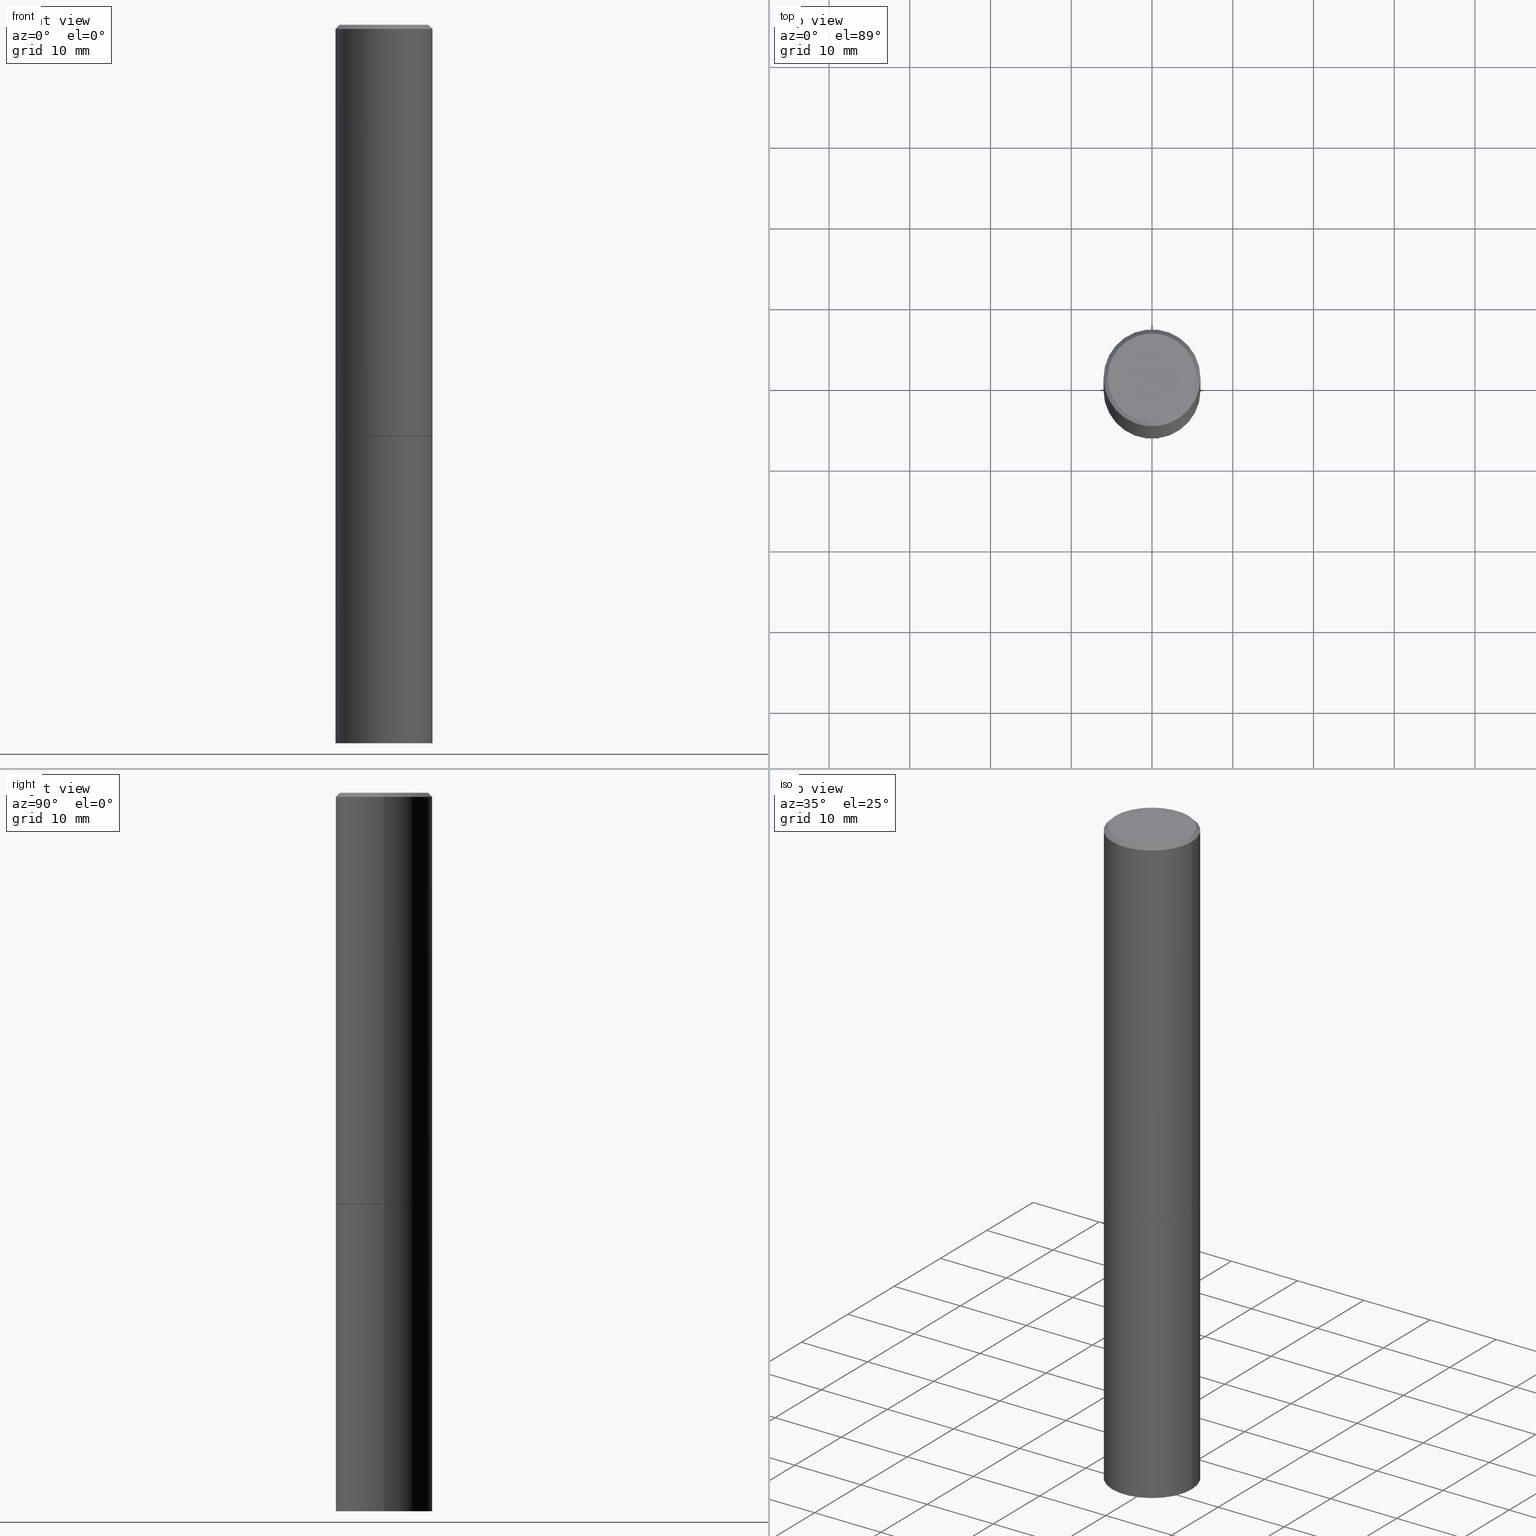
[diagram: canonical four-view strip — front | top / right | iso, engineering-drawing reading convention]
A machine part, canonical four-view strip (front | top / right | iso — engineering-drawing reading convention). The complete STEP part file that produces these views, byte-faithful:
ISO-10303-21;
HEADER;
FILE_DESCRIPTION (( 'STEP AP203' ),
    '1' );
FILE_NAME ('83063.STEP',
    '2024-02-29T22:59:36',
    ( '' ),
    ( '' ),
    'SwSTEP 2.0',
    'SolidWorks 2023',
    '' );
FILE_SCHEMA (( 'CONFIG_CONTROL_DESIGN' ));
ENDSEC;

DATA;
#1 = FACE_OUTER_BOUND ( 'NONE', #278, .T. ) ;
#2 = FACE_OUTER_BOUND ( 'NONE', #48, .T. ) ;
#3 = AXIS2_PLACEMENT_3D ( 'NONE', #129, #182, #41 ) ;
#4 = AXIS2_PLACEMENT_3D ( 'NONE', #177, #290, #34 ) ;
#5 = CARTESIAN_POINT ( 'NONE',  ( -1.043851414335219820E-46, 1.490343170380447200E-32, 4.268512490100411279E-18 ) ) ;
#6 = EDGE_CURVE ( 'NONE', #273, #118, #31, .T. ) ;
#7 = DIRECTION ( 'NONE',  ( 1.000000000000000000, -6.982962677686266711E-15, 0.000000000000000000 ) ) ;
#8 = DIRECTION ( 'NONE',  ( 1.000000000000000000, -6.982962677686265133E-15, 0.000000000000000000 ) ) ;
#9 = PLANE ( 'NONE',  #190 ) ;
#10 = DIRECTION ( 'NONE',  ( -1.000000000000000000, 6.982962677686265922E-15, -4.876176775795935793E-29 ) ) ;
#11 = ORIENTED_EDGE ( 'NONE', *, *, #339, .T. ) ;
#12 = EDGE_CURVE ( 'NONE', #289, #127, #189, .T. ) ;
#13 = DIRECTION ( 'NONE',  ( -2.445468806185136597E-29, 3.491481338843145583E-15, 1.000000000000000000 ) ) ;
#14 = DIRECTION ( 'NONE',  ( 1.000000000000000000, -6.982962677686265133E-15, 0.000000000000000000 ) ) ;
#15 = ORIENTED_EDGE ( 'NONE', *, *, #30, .T. ) ;
#16 = CARTESIAN_POINT ( 'NONE',  ( 4.910012269058516525E-29, -7.010196232129267410E-15, -2.007800000000000029 ) ) ;
#17 = CARTESIAN_POINT ( 'NONE',  ( -0.2361999999999997990, 1.579546157692631649E-15, -0.02000000000000003164 ) ) ;
#18 = ORIENTED_EDGE ( 'NONE', *, *, #337, .F. ) ;
#19 = DIRECTION ( 'NONE',  ( 1.000000000000000000, -6.982962677686265922E-15, 4.876176775795935793E-29 ) ) ;
#20 = CIRCLE ( 'NONE', #163, 0.2361999999999999933 ) ;
#21 = SECURITY_CLASSIFICATION_LEVEL ( 'unclassified' ) ;
#22 = APPLICATION_PROTOCOL_DEFINITION ( 'international standard', 'config_control_design', 1994, #29 ) ;
#23 = APPLICATION_CONTEXT ( 'configuration controlled 3d designs of mechanical parts and assemblies' ) ;
#24 = PERSON_AND_ORGANIZATION ( #180, #243 ) ;
#25 = PRODUCT_DEFINITION_SHAPE ( 'NONE', 'NONE',  #251 ) ;
#26 = AXIS2_PLACEMENT_3D ( 'NONE', #50, #167, #84 ) ;
#27 = PERSON_AND_ORGANIZATION_ROLE ( 'creator' ) ;
#28 = DIRECTION ( 'NONE',  ( 2.445468806185136597E-29, -3.491481338843145583E-15, -1.000000000000000000 ) ) ;
#29 = APPLICATION_CONTEXT ( 'configuration controlled 3d designs of mechanical parts and assemblies' ) ;
#30 = EDGE_CURVE ( 'NONE', #273, #153, #169, .T. ) ;
#31 = LINE ( 'NONE', #365, #200 ) ;
#32 = CC_DESIGN_APPROVAL ( #115, ( #139 ) ) ;
#33 = ORIENTED_EDGE ( 'NONE', *, *, #12, .T. ) ;
#34 = DIRECTION ( 'NONE',  ( 1.000000000000000000, -6.982962677686266711E-15, 4.876176775795936353E-29 ) ) ;
#35 = CARTESIAN_POINT ( 'NONE',  ( 4.907566800252331482E-29, -7.006704750790423614E-15, -2.006799999999999695 ) ) ;
#36 = ORIENTED_EDGE ( 'NONE', *, *, #337, .T. ) ;
#37 = CARTESIAN_POINT ( 'NONE',  ( 0.2361999999999999933, -1.649375784469496131E-15, 1.151752954443000088E-29 ) ) ;
#38 = CIRCLE ( 'NONE', #171, 0.2361999999999999933 ) ;
#39 = CARTESIAN_POINT ( 'NONE',  ( 0.2361999999999999933, -1.388317724764199281E-14, -3.503899999999999793 ) ) ;
#40 = APPROVAL ( #138, 'UNSPECIFIED' ) ;
#41 = DIRECTION ( 'NONE',  ( 1.000000000000000000, -6.982962677686267499E-15, 4.876176775795936353E-29 ) ) ;
#42 = ORIENTED_EDGE ( 'NONE', *, *, #30, .F. ) ;
#43 = FACE_OUTER_BOUND ( 'NONE', #245, .T. ) ;
#44 = ADVANCED_BREP_SHAPE_REPRESENTATION ( '83063', ( #142, #277, #26 ), #155 ) ;
#45 = LOCAL_TIME ( 17, 59, 36.00000000000000000, #168 ) ;
#46 = CARTESIAN_POINT ( 'NONE',  ( -0.2361999999999998823, 1.678301941865355803E-15, -1.161852468318208336E-29 ) ) ;
#47 = PLANE ( 'NONE',  #319 ) ;
#48 = EDGE_LOOP ( 'NONE', ( #203, #79, #164, #60 ) ) ;
#49 = EDGE_LOOP ( 'NONE', ( #229, #156, #42, #18 ) ) ;
#50 = CARTESIAN_POINT ( 'NONE',  ( 0.000000000000000000, 0.000000000000000000, 0.000000000000000000 ) ) ;
#51 = EDGE_CURVE ( 'NONE', #183, #98, #343, .T. ) ;
#52 = CARTESIAN_POINT ( 'NONE',  ( -0.2361999999999997990, 1.579546157692631649E-15, -0.02000000000000003164 ) ) ;
#53 = ORIENTED_EDGE ( 'NONE', *, *, #325, .F. ) ;
#54 = VECTOR ( 'NONE', #101, 39.37007874015748854 ) ;
#55 = CARTESIAN_POINT ( 'NONE',  ( 4.910012269058516525E-29, -7.010196232129267410E-15, -2.007800000000000029 ) ) ;
#56 = DATE_AND_TIME ( #225, #85 ) ;
#57 = APPROVAL_ROLE ( '' ) ;
#58 = AXIS2_PLACEMENT_3D ( 'NONE', #293, #150, #265 ) ;
#59 = CARTESIAN_POINT ( 'NONE',  ( 0.2161999999999997535, -1.586759460484350410E-15, 4.268512490111238857E-18 ) ) ;
#60 = ORIENTED_EDGE ( 'NONE', *, *, #224, .F. ) ;
#61 = PLANE ( 'NONE',  #230 ) ;
#62 = AXIS2_PLACEMENT_3D ( 'NONE', #219, #125, #347 ) ;
#63 = DIRECTION ( 'NONE',  ( 1.000000000000000000, -6.982962677686269077E-15, 0.000000000000000000 ) ) ;
#64 = APPROVAL ( #276, 'UNSPECIFIED' ) ;
#65 = CYLINDRICAL_SURFACE ( 'NONE', #4, 0.2361999999999999933 ) ;
#66 = DIRECTION ( 'NONE',  ( -2.445468806185136597E-29, 3.491481338843145583E-15, 1.000000000000000000 ) ) ;
#67 = CIRCLE ( 'NONE', #363, 0.2161999999999997535 ) ;
#68 = ADVANCED_FACE ( 'NONE', ( #329 ), #69, .T. ) ;
#69 = CYLINDRICAL_SURFACE ( 'NONE', #3, 0.2361999999999998823 ) ;
#70 = FACE_OUTER_BOUND ( 'NONE', #295, .T. ) ;
#71 = ORIENTED_EDGE ( 'NONE', *, *, #332, .F. ) ;
#72 = CIRCLE ( 'NONE', #299, 0.2351999999999999924 ) ;
#73 = CARTESIAN_POINT ( 'NONE',  ( 4.890937612370280165E-31, -6.982962677686301470E-17, -0.02000000000000003164 ) ) ;
#74 = ORIENTED_EDGE ( 'NONE', *, *, #170, .F. ) ;
#75 = ADVANCED_FACE ( 'NONE', ( #244 ), #47, .T. ) ;
#76 = PERSON_AND_ORGANIZATION ( #180, #243 ) ;
#77 = ORIENTED_EDGE ( 'NONE', *, *, #130, .T. ) ;
#78 = APPROVAL_DATE_TIME ( #333, #115 ) ;
#79 = ORIENTED_EDGE ( 'NONE', *, *, #110, .T. ) ;
#80 = PERSON_AND_ORGANIZATION_ROLE ( 'design_supplier' ) ;
#81 = LOCAL_TIME ( 17, 59, 36.00000000000000000, #307 ) ;
#82 = CC_DESIGN_PERSON_AND_ORGANIZATION_ASSIGNMENT ( #76, #27, ( #221 ) ) ;
#83 = COORDINATED_UNIVERSAL_TIME_OFFSET ( 5, 0, .BEHIND. ) ;
#84 = DIRECTION ( 'NONE',  ( 1.000000000000000000, 0.000000000000000000, 0.000000000000000000 ) ) ;
#85 = LOCAL_TIME ( 17, 59, 36.00000000000000000, #197 ) ;
#86 = CARTESIAN_POINT ( 'NONE',  ( 0.2361999999999997990, -1.690279253850497391E-15, -0.02000000000000003164 ) ) ;
#87 = CARTESIAN_POINT ( 'NONE',  ( 0.000000000000000000, 0.000000000000000000, 0.000000000000000000 ) ) ;
#88 = DESIGN_CONTEXT ( 'detailed design', #23, 'design' ) ;
#89 = EDGE_CURVE ( 'NONE', #192, #223, #226, .T. ) ;
#90 = AXIS2_PLACEMENT_3D ( 'NONE', #16, #159, #19 ) ;
#91 = EDGE_CURVE ( 'NONE', #114, #118, #97, .T. ) ;
#92 = CARTESIAN_POINT ( 'NONE',  ( -0.2361999999999999933, -7.943696905785525451E-15, -3.503899999999999793 ) ) ;
#93 = AXIS2_PLACEMENT_3D ( 'NONE', #297, #270, #14 ) ;
#94 = CC_DESIGN_APPROVAL ( #40, ( #251 ) ) ;
#95 = ORIENTED_EDGE ( 'NONE', *, *, #209, .T. ) ;
#96 = LINE ( 'NONE', #46, #165 ) ;
#97 = LINE ( 'NONE', #216, #103 ) ;
#98 = VERTEX_POINT ( 'NONE', #17 ) ;
#99 = CARTESIAN_POINT ( 'NONE',  ( -0.2351999999999999924, -5.338999717621511235E-15, -2.007800000000000029 ) ) ;
#100 = CARTESIAN_POINT ( 'NONE',  ( -0.2361999999999999933, 1.678301941865356591E-15, -1.161852468318208757E-29 ) ) ;
#101 = DIRECTION ( 'NONE',  ( -0.7071067811865232589, 7.493145998870265808E-15, 0.7071067811865715536 ) ) ;
#102 = EDGE_CURVE ( 'NONE', #286, #253, #308, .T. ) ;
#103 = VECTOR ( 'NONE', #186, 39.37007874015748143 ) ;
#104 = ORIENTED_EDGE ( 'NONE', *, *, #291, .F. ) ;
#105 = CONICAL_SURFACE ( 'NONE', #257, 0.2361999999999997990, 0.7853981633974480570 ) ;
#106 = APPROVAL_ROLE ( '' ) ;
#107 = ORIENTED_EDGE ( 'NONE', *, *, #102, .F. ) ;
#108 = CALENDAR_DATE ( 2024, 29, 2 ) ;
#109 = ORIENTED_EDGE ( 'NONE', *, *, #170, .T. ) ;
#110 = EDGE_CURVE ( 'NONE', #286, #289, #131, .T. ) ;
#111 = APPROVAL_DATE_TIME ( #283, #64 ) ;
#112 = CALENDAR_DATE ( 2024, 29, 2 ) ;
#113 = DATE_AND_TIME ( #360, #328 ) ;
#114 = VERTEX_POINT ( 'NONE', #59 ) ;
#115 = APPROVAL ( #166, 'UNSPECIFIED' ) ;
#116 = CARTESIAN_POINT ( 'NONE',  ( -0.2361999999999999933, -1.859965246918285484E-15, -2.006799999999999695 ) ) ;
#117 = CARTESIAN_POINT ( 'NONE',  ( 1.649375784469545040E-15, 0.2361999999999929989, -2.007800000000000473 ) ) ;
#118 = VERTEX_POINT ( 'NONE', #86 ) ;
#119 = CC_DESIGN_PERSON_AND_ORGANIZATION_ASSIGNMENT ( #354, #80, ( #221 ) ) ;
#120 = DIRECTION ( 'NONE',  ( -2.445468806185136877E-29, 3.491481338843145188E-15, 1.000000000000000000 ) ) ;
#121 = CYLINDRICAL_SURFACE ( 'NONE', #176, 0.2361999999999999933 ) ;
#122 = CLOSED_SHELL ( 'NONE', ( #215, #75, #141, #204 ) ) ;
#123 = APPROVAL_PERSON_ORGANIZATION ( #24, #40, #57 ) ;
#124 = DIRECTION ( 'NONE',  ( -1.000000000000000000, 6.982962677686266711E-15, 0.000000000000000000 ) ) ;
#125 = DIRECTION ( 'NONE',  ( -2.445468806185136597E-29, 3.491481338843145583E-15, 1.000000000000000000 ) ) ;
#126 = CONICAL_SURFACE ( 'NONE', #58, 0.2351999999999999924, 0.7853981633974141952 ) ;
#127 = VERTEX_POINT ( 'NONE', #208 ) ;
#128 = CARTESIAN_POINT ( 'NONE',  ( 1.509716530915769140E-15, 0.2161999999999997535, -7.527240092128371176E-16 ) ) ;
#129 = CARTESIAN_POINT ( 'NONE',  ( 0.000000000000000000, 0.000000000000000000, 0.000000000000000000 ) ) ;
#130 = EDGE_CURVE ( 'NONE', #114, #183, #181, .T. ) ;
#131 = LINE ( 'NONE', #100, #353 ) ;
#132 = FACE_OUTER_BOUND ( 'NONE', #49, .T. ) ;
#133 = ORIENTED_EDGE ( 'NONE', *, *, #135, .F. ) ;
#134 = PERSON_AND_ORGANIZATION_ROLE ( 'classification_officer' ) ;
#135 = EDGE_CURVE ( 'NONE', #253, #286, #20, .T. ) ;
#136 = ORIENTED_EDGE ( 'NONE', *, *, #51, .T. ) ;
#137 = DATE_TIME_ROLE ( 'classification_date' ) ;
#138 = APPROVAL_STATUS ( 'not_yet_approved' ) ;
#139 = SECURITY_CLASSIFICATION ( '', '', #21 ) ;
#140 = ORIENTED_EDGE ( 'NONE', *, *, #91, .T. ) ;
#141 = ADVANCED_FACE ( 'NONE', ( #1 ), #61, .F. ) ;
#142 = MANIFOLD_SOLID_BREP ( 'Body-Move/Copy2[1]', #122 ) ;
#143 = CARTESIAN_POINT ( 'NONE',  ( -0.2161999999999997535, 1.544631344304200395E-15, 4.268512490089730842E-18 ) ) ;
#144 = CC_DESIGN_PERSON_AND_ORGANIZATION_ASSIGNMENT ( #306, #256, ( #160 ) ) ;
#145 = ORIENTED_EDGE ( 'NONE', *, *, #255, .T. ) ;
#146 = DIRECTION ( 'NONE',  ( -2.445468806185136597E-29, 3.491481338843145583E-15, 1.000000000000000000 ) ) ;
#147 = DIRECTION ( 'NONE',  ( -1.000000000000000000, 6.982962677686265922E-15, -4.876176775795935793E-29 ) ) ;
#148 = CARTESIAN_POINT ( 'NONE',  ( 4.907566800252331482E-29, -7.006704750790423614E-15, -2.006799999999999695 ) ) ;
#149 = AXIS2_PLACEMENT_3D ( 'NONE', #148, #146, #263 ) ;
#150 = DIRECTION ( 'NONE',  ( -2.445468806185136597E-29, 3.491481338843145583E-15, 1.000000000000000000 ) ) ;
#151 = DIRECTION ( 'NONE',  ( 1.000000000000000000, -6.982962677686266711E-15, 0.000000000000000000 ) ) ;
#152 = DIRECTION ( 'NONE',  ( 2.438088387897960049E-29, -3.491481338843145188E-15, -1.000000000000000000 ) ) ;
#153 = VERTEX_POINT ( 'NONE', #116 ) ;
#154 =( NAMED_UNIT ( * ) SI_UNIT ( $, .STERADIAN. ) SOLID_ANGLE_UNIT ( ) );
#155 =( GEOMETRIC_REPRESENTATION_CONTEXT ( 3 ) GLOBAL_UNCERTAINTY_ASSIGNED_CONTEXT ( ( #305 ) ) GLOBAL_UNIT_ASSIGNED_CONTEXT ( ( #349, #246, #154 ) ) REPRESENTATION_CONTEXT ( 'NONE', 'WORKASPACE' ) );
#156 = ORIENTED_EDGE ( 'NONE', *, *, #291, .T. ) ;
#157 = PRODUCT_RELATED_PRODUCT_CATEGORY ( 'detail', '', ( #160 ) ) ;
#158 = DIRECTION ( 'NONE',  ( 1.000000000000000000, -6.982962677686264344E-15, 0.000000000000000000 ) ) ;
#159 = DIRECTION ( 'NONE',  ( -2.438088387897960049E-29, 3.491481338843145188E-15, 1.000000000000000000 ) ) ;
#160 = PRODUCT ( '83063', '83063', '', ( #336 ) ) ;
#161 = CARTESIAN_POINT ( 'NONE',  ( 1.649375784469581525E-15, 0.2361999999999877808, -3.503900000000000681 ) ) ;
#162 = EDGE_LOOP ( 'NONE', ( #344, #74, #136, #173 ) ) ;
#163 = AXIS2_PLACEMENT_3D ( 'NONE', #341, #287, #312 ) ;
#164 = ORIENTED_EDGE ( 'NONE', *, *, #339, .F. ) ;
#165 = VECTOR ( 'NONE', #322, 39.37007874015748143 ) ;
#166 = APPROVAL_STATUS ( 'not_yet_approved' ) ;
#167 = DIRECTION ( 'NONE',  ( 0.000000000000000000, 0.000000000000000000, 1.000000000000000000 ) ) ;
#168 = COORDINATED_UNIVERSAL_TIME_OFFSET ( 5, 0, .BEHIND. ) ;
#169 = CIRCLE ( 'NONE', #194, 0.2361999999999999933 ) ;
#170 = EDGE_CURVE ( 'NONE', #183, #114, #67, .T. ) ;
#171 = AXIS2_PLACEMENT_3D ( 'NONE', #220, #66, #248 ) ;
#172 = FACE_OUTER_BOUND ( 'NONE', #162, .T. ) ;
#173 = ORIENTED_EDGE ( 'NONE', *, *, #266, .T. ) ;
#174 = AXIS2_PLACEMENT_3D ( 'NONE', #55, #254, #63 ) ;
#175 = FACE_OUTER_BOUND ( 'NONE', #348, .T. ) ;
#176 = AXIS2_PLACEMENT_3D ( 'NONE', #202, #238, #261 ) ;
#177 = CARTESIAN_POINT ( 'NONE',  ( 0.000000000000000000, 0.000000000000000000, 0.000000000000000000 ) ) ;
#178 = CC_DESIGN_PERSON_AND_ORGANIZATION_ASSIGNMENT ( #281, #134, ( #139 ) ) ;
#179 = DIRECTION ( 'NONE',  ( -2.445468806185136597E-29, 3.491481338843145583E-15, 1.000000000000000000 ) ) ;
#180 = PERSON ( 'UNSPECIFIED', 'UNSPECIFIED', 'UNSPECIFIED', ('UNSPECIFIED'), ('UNSPECIFIED'), ('UNSPECIFIED') ) ;
#181 = CIRCLE ( 'NONE', #338, 0.2161999999999997535 ) ;
#182 = DIRECTION ( 'NONE',  ( -2.445468806185136597E-29, 3.491481338843145583E-15, 1.000000000000000000 ) ) ;
#183 = VERTEX_POINT ( 'NONE', #143 ) ;
#184 = LINE ( 'NONE', #239, #201 ) ;
#185 = ADVANCED_FACE ( 'NONE', ( #340 ), #232, .T. ) ;
#186 = DIRECTION ( 'NONE',  ( 0.7071067811865473507, -7.319954787623256045E-15, -0.7071067811865476838 ) ) ;
#187 = ORIENTED_EDGE ( 'NONE', *, *, #110, .F. ) ;
#188 = LINE ( 'NONE', #99, #54 ) ;
#189 = CIRCLE ( 'NONE', #174, 0.2361999999999999933 ) ;
#190 = AXIS2_PLACEMENT_3D ( 'NONE', #128, #211, #241 ) ;
#191 = CARTESIAN_POINT ( 'NONE',  ( 0.2361999999999999933, -8.656080535259919350E-15, -2.006799999999999695 ) ) ;
#192 = VERTEX_POINT ( 'NONE', #311 ) ;
#193 = COORDINATED_UNIVERSAL_TIME_OFFSET ( 5, 0, .BEHIND. ) ;
#194 = AXIS2_PLACEMENT_3D ( 'NONE', #35, #316, #8 ) ;
#195 = DIRECTION ( 'NONE',  ( -2.445468806185136877E-29, 3.491481338843145188E-15, 1.000000000000000000 ) ) ;
#196 = LOCAL_TIME ( 17, 59, 36.00000000000000000, #83 ) ;
#197 = COORDINATED_UNIVERSAL_TIME_OFFSET ( 5, 0, .BEHIND. ) ;
#198 = CALENDAR_DATE ( 2024, 29, 2 ) ;
#199 = PERSON_AND_ORGANIZATION ( #180, #243 ) ;
#200 = VECTOR ( 'NONE', #195, 39.37007874015748143 ) ;
#201 = VECTOR ( 'NONE', #342, 39.37007874015748854 ) ;
#202 = CARTESIAN_POINT ( 'NONE',  ( 0.000000000000000000, 0.000000000000000000, 0.000000000000000000 ) ) ;
#203 = ORIENTED_EDGE ( 'NONE', *, *, #135, .T. ) ;
#204 = ADVANCED_FACE ( 'NONE', ( #175 ), #65, .T. ) ;
#205 = DIRECTION ( 'NONE',  ( 2.438088387897960049E-29, -3.491481338843145188E-15, -1.000000000000000000 ) ) ;
#206 = DIRECTION ( 'NONE',  ( 1.000000000000000000, -6.982962677686267499E-15, 4.876176775795936353E-29 ) ) ;
#207 = DIRECTION ( 'NONE',  ( 1.000000000000000000, -6.982962677686267499E-15, 4.876217060660161280E-29 ) ) ;
#208 = CARTESIAN_POINT ( 'NONE',  ( 0.2361999999999999933, -8.659572016598763935E-15, -2.007800000000000029 ) ) ;
#209 = EDGE_CURVE ( 'NONE', #153, #273, #309, .T. ) ;
#210 = LENGTH_MEASURE_WITH_UNIT ( LENGTH_MEASURE( 0.02539999999999999897 ), #324 );
#211 = DIRECTION ( 'NONE',  ( 2.438088387897960049E-29, -3.491481338843145188E-15, -1.000000000000000000 ) ) ;
#212 = CONICAL_SURFACE ( 'NONE', #231, 0.2361999999999997990, 0.7853981633974480570 ) ;
#213 = DIRECTION ( 'NONE',  ( -0.7071067811865473507, 2.468850131082255088E-15, -0.7071067811865476838 ) ) ;
#214 = DIRECTION ( 'NONE',  ( -2.445468806185136597E-29, 3.491481338843145583E-15, 1.000000000000000000 ) ) ;
#215 = ADVANCED_FACE ( 'NONE', ( #2 ), #121, .T. ) ;
#216 = CARTESIAN_POINT ( 'NONE',  ( 0.2361999999999997990, -1.690279253850497391E-15, -0.02000000000000003164 ) ) ;
#217 = EDGE_LOOP ( 'NONE', ( #53, #271 ) ) ;
#218 = DIRECTION ( 'NONE',  ( 1.000000000000000000, -6.982962677686264344E-15, 0.000000000000000000 ) ) ;
#219 = CARTESIAN_POINT ( 'NONE',  ( 4.910012269058516525E-29, -7.010196232129267410E-15, -2.007800000000000029 ) ) ;
#220 = CARTESIAN_POINT ( 'NONE',  ( 4.910012269058516525E-29, -7.010196232129267410E-15, -2.007800000000000029 ) ) ;
#221 = PRODUCT_DEFINITION_FORMATION_WITH_SPECIFIED_SOURCE ( 'ANY', '', #160, .NOT_KNOWN. ) ;
#222 = ORIENTED_EDGE ( 'NONE', *, *, #255, .F. ) ;
#223 = VERTEX_POINT ( 'NONE', #235 ) ;
#224 = EDGE_CURVE ( 'NONE', #253, #127, #236, .T. ) ;
#225 = CALENDAR_DATE ( 2024, 29, 2 ) ;
#226 = CIRCLE ( 'NONE', #62, 0.2351999999999999924 ) ;
#227 = DATE_TIME_ROLE ( 'creation_date' ) ;
#228 = CC_DESIGN_DATE_AND_TIME_ASSIGNMENT ( #113, #227, ( #251 ) ) ;
#229 = ORIENTED_EDGE ( 'NONE', *, *, #325, .T. ) ;
#230 = AXIS2_PLACEMENT_3D ( 'NONE', #117, #205, #147 ) ;
#231 = AXIS2_PLACEMENT_3D ( 'NONE', #296, #274, #124 ) ;
#232 = CYLINDRICAL_SURFACE ( 'NONE', #259, 0.2361999999999998823 ) ;
#233 = DIRECTION ( 'NONE',  ( -2.445468806185136597E-29, 3.491481338843145583E-15, 1.000000000000000000 ) ) ;
#234 = EDGE_LOOP ( 'NONE', ( #71, #95, #247, #300 ) ) ;
#235 = CARTESIAN_POINT ( 'NONE',  ( 0.2351999999999999924, -8.652589053921076343E-15, -2.007800000000000029 ) ) ;
#236 = LINE ( 'NONE', #37, #237 ) ;
#237 = VECTOR ( 'NONE', #310, 39.37007874015748143 ) ;
#238 = DIRECTION ( 'NONE',  ( -2.445468806185136597E-29, 3.491481338843145583E-15, 1.000000000000000000 ) ) ;
#239 = CARTESIAN_POINT ( 'NONE',  ( 0.2351999999999999924, -8.652589053921076343E-15, -2.007800000000000029 ) ) ;
#240 = ADVANCED_FACE ( 'NONE', ( #172 ), #105, .T. ) ;
#241 = DIRECTION ( 'NONE',  ( -1.000000000000000000, 6.982962677686265922E-15, -4.876176775795935793E-29 ) ) ;
#242 = VECTOR ( 'NONE', #213, 39.37007874015748143 ) ;
#243 = ORGANIZATION ( 'UNSPECIFIED', 'UNSPECIFIED', '' ) ;
#244 = FACE_OUTER_BOUND ( 'NONE', #323, .T. ) ;
#245 = EDGE_LOOP ( 'NONE', ( #104, #301, #36, #335 ) ) ;
#246 =( NAMED_UNIT ( * ) PLANE_ANGLE_UNIT ( ) SI_UNIT ( $, .RADIAN. ) );
#247 = ORIENTED_EDGE ( 'NONE', *, *, #6, .T. ) ;
#248 = DIRECTION ( 'NONE',  ( 1.000000000000000000, -6.982962677686269077E-15, 0.000000000000000000 ) ) ;
#249 = ORIENTED_EDGE ( 'NONE', *, *, #130, .F. ) ;
#250 = CC_DESIGN_APPROVAL ( #64, ( #221 ) ) ;
#251 = PRODUCT_DEFINITION ( 'UNKNOWN', '', #221, #88 ) ;
#252 = DATE_AND_TIME ( #112, #81 ) ;
#253 = VERTEX_POINT ( 'NONE', #39 ) ;
#254 = DIRECTION ( 'NONE',  ( -2.445468806185136597E-29, 3.491481338843145583E-15, 1.000000000000000000 ) ) ;
#255 = EDGE_CURVE ( 'NONE', #118, #98, #282, .T. ) ;
#256 = PERSON_AND_ORGANIZATION_ROLE ( 'design_owner' ) ;
#257 = AXIS2_PLACEMENT_3D ( 'NONE', #285, #28, #326 ) ;
#258 = APPROVAL_DATE_TIME ( #252, #40 ) ;
#259 = AXIS2_PLACEMENT_3D ( 'NONE', #87, #292, #206 ) ;
#260 = EDGE_LOOP ( 'NONE', ( #109, #77 ) ) ;
#261 = DIRECTION ( 'NONE',  ( 1.000000000000000000, -6.982962677686266711E-15, 4.876176775795936353E-29 ) ) ;
#262 = ADVANCED_FACE ( 'NONE', ( #70 ), #212, .T. ) ;
#263 = DIRECTION ( 'NONE',  ( 1.000000000000000000, -6.982962677686265133E-15, 0.000000000000000000 ) ) ;
#264 = APPROVAL_PERSON_ORGANIZATION ( #355, #115, #106 ) ;
#265 = DIRECTION ( 'NONE',  ( 1.000000000000000000, -6.982962677686264344E-15, 0.000000000000000000 ) ) ;
#266 = EDGE_CURVE ( 'NONE', #98, #118, #314, .T. ) ;
#267 = FACE_OUTER_BOUND ( 'NONE', #217, .T. ) ;
#268 = ORIENTED_EDGE ( 'NONE', *, *, #12, .F. ) ;
#269 = AXIS2_PLACEMENT_3D ( 'NONE', #294, #13, #7 ) ;
#270 = DIRECTION ( 'NONE',  ( -2.445468806185136597E-29, 3.491481338843145583E-15, 1.000000000000000000 ) ) ;
#271 = ORIENTED_EDGE ( 'NONE', *, *, #89, .F. ) ;
#272 = CARTESIAN_POINT ( 'NONE',  ( -0.2361999999999999933, -7.943696905785525451E-15, -2.007800000000000029 ) ) ;
#273 = VERTEX_POINT ( 'NONE', #191 ) ;
#274 = DIRECTION ( 'NONE',  ( 2.445468806185136597E-29, -3.491481338843145583E-15, -1.000000000000000000 ) ) ;
#275 = ORIENTED_EDGE ( 'NONE', *, *, #51, .F. ) ;
#276 = APPROVAL_STATUS ( 'not_yet_approved' ) ;
#277 = MANIFOLD_SOLID_BREP ( 'Body-Move/Copy2[2]', #327 ) ;
#278 = EDGE_LOOP ( 'NONE', ( #11, #33 ) ) ;
#279 = SHAPE_DEFINITION_REPRESENTATION ( #25, #44 ) ;
#280 = CC_DESIGN_PERSON_AND_ORGANIZATION_ASSIGNMENT ( #302, #357, ( #251 ) ) ;
#281 = PERSON_AND_ORGANIZATION ( #180, #243 ) ;
#282 = CIRCLE ( 'NONE', #269, 0.2361999999999997990 ) ;
#283 = DATE_AND_TIME ( #198, #196 ) ;
#284 = DIMENSIONAL_EXPONENTS ( 1.000000000000000000, 0.000000000000000000, 0.000000000000000000, 0.000000000000000000, 0.000000000000000000, 0.000000000000000000, 0.000000000000000000 ) ;
#285 = CARTESIAN_POINT ( 'NONE',  ( 4.890937612370280165E-31, -6.982962677686301470E-17, -0.02000000000000003164 ) ) ;
#286 = VERTEX_POINT ( 'NONE', #92 ) ;
#287 = DIRECTION ( 'NONE',  ( -2.445468806185136597E-29, 3.491481338843145583E-15, 1.000000000000000000 ) ) ;
#288 = CC_DESIGN_SECURITY_CLASSIFICATION ( #139, ( #221 ) ) ;
#289 = VERTEX_POINT ( 'NONE', #272 ) ;
#290 = DIRECTION ( 'NONE',  ( -2.445468806185136597E-29, 3.491481338843145583E-15, 1.000000000000000000 ) ) ;
#291 = EDGE_CURVE ( 'NONE', #192, #153, #188, .T. ) ;
#292 = DIRECTION ( 'NONE',  ( -2.445468806185136597E-29, 3.491481338843145583E-15, 1.000000000000000000 ) ) ;
#293 = CARTESIAN_POINT ( 'NONE',  ( 4.910012269058516525E-29, -7.010196232129267410E-15, -2.007800000000000029 ) ) ;
#294 = CARTESIAN_POINT ( 'NONE',  ( 4.890937612370280165E-31, -6.982962677686301470E-17, -0.02000000000000003164 ) ) ;
#295 = EDGE_LOOP ( 'NONE', ( #249, #140, #145, #275 ) ) ;
#296 = CARTESIAN_POINT ( 'NONE',  ( 4.890937612370280165E-31, -6.982962677686301470E-17, -0.02000000000000003164 ) ) ;
#297 = CARTESIAN_POINT ( 'NONE',  ( 8.568678149992099474E-29, -1.223380146317249786E-14, -3.503899999999999793 ) ) ;
#298 = FACE_OUTER_BOUND ( 'NONE', #260, .T. ) ;
#299 = AXIS2_PLACEMENT_3D ( 'NONE', #351, #346, #218 ) ;
#300 = ORIENTED_EDGE ( 'NONE', *, *, #266, .F. ) ;
#301 = ORIENTED_EDGE ( 'NONE', *, *, #89, .T. ) ;
#302 = PERSON_AND_ORGANIZATION ( #180, #243 ) ;
#303 = ADVANCED_FACE ( 'NONE', ( #267 ), #318, .F. ) ;
#304 = APPROVAL_PERSON_ORGANIZATION ( #199, #64, #334 ) ;
#305 = UNCERTAINTY_MEASURE_WITH_UNIT (LENGTH_MEASURE( 1.000000000000000082E-05 ), #349, 'distance_accuracy_value', 'NONE');
#306 = PERSON_AND_ORGANIZATION ( #180, #243 ) ;
#307 = COORDINATED_UNIVERSAL_TIME_OFFSET ( 5, 0, .BEHIND. ) ;
#308 = CIRCLE ( 'NONE', #93, 0.2361999999999999933 ) ;
#309 = CIRCLE ( 'NONE', #149, 0.2361999999999999933 ) ;
#310 = DIRECTION ( 'NONE',  ( -2.445468806185136877E-29, 3.491481338843145188E-15, 1.000000000000000000 ) ) ;
#311 = CARTESIAN_POINT ( 'NONE',  ( -0.2351999999999999924, -5.333701263273288833E-15, -2.007800000000000029 ) ) ;
#312 = DIRECTION ( 'NONE',  ( 1.000000000000000000, -6.982962677686265133E-15, 0.000000000000000000 ) ) ;
#313 = ADVANCED_FACE ( 'NONE', ( #298 ), #9, .F. ) ;
#314 = CIRCLE ( 'NONE', #359, 0.2361999999999997990 ) ;
#315 = DIRECTION ( 'NONE',  ( -2.445468806185136597E-29, 3.491481338843145583E-15, 1.000000000000000000 ) ) ;
#316 = DIRECTION ( 'NONE',  ( -2.445468806185136597E-29, 3.491481338843145583E-15, 1.000000000000000000 ) ) ;
#317 = CARTESIAN_POINT ( 'NONE',  ( -1.043851414335219820E-46, 1.490343170380447200E-32, 4.268512490100411279E-18 ) ) ;
#318 = PLANE ( 'NONE',  #90 ) ;
#319 = AXIS2_PLACEMENT_3D ( 'NONE', #161, #152, #10 ) ;
#320 = CARTESIAN_POINT ( 'NONE',  ( 4.910012269058516525E-29, -7.010196232129267410E-15, -2.007800000000000029 ) ) ;
#321 = ORIENTED_EDGE ( 'NONE', *, *, #224, .T. ) ;
#322 = DIRECTION ( 'NONE',  ( -2.445468806185136877E-29, 3.491481338843145188E-15, 1.000000000000000000 ) ) ;
#323 = EDGE_LOOP ( 'NONE', ( #133, #107 ) ) ;
#324 =( LENGTH_UNIT ( ) NAMED_UNIT ( * ) SI_UNIT ( $, .METRE. ) );
#325 = EDGE_CURVE ( 'NONE', #223, #192, #72, .T. ) ;
#326 = DIRECTION ( 'NONE',  ( -1.000000000000000000, 6.982962677686266711E-15, 0.000000000000000000 ) ) ;
#327 = CLOSED_SHELL ( 'NONE', ( #366, #185, #262, #240, #68, #350, #303, #313 ) ) ;
#328 = LOCAL_TIME ( 17, 59, 36.00000000000000000, #193 ) ;
#329 = FACE_OUTER_BOUND ( 'NONE', #234, .T. ) ;
#330 = EDGE_LOOP ( 'NONE', ( #15, #352, #222, #356 ) ) ;
#331 = ORIENTED_EDGE ( 'NONE', *, *, #102, .T. ) ;
#332 = EDGE_CURVE ( 'NONE', #153, #98, #96, .T. ) ;
#333 = DATE_AND_TIME ( #108, #45 ) ;
#334 = APPROVAL_ROLE ( '' ) ;
#335 = ORIENTED_EDGE ( 'NONE', *, *, #209, .F. ) ;
#336 = MECHANICAL_CONTEXT ( 'NONE', #29, 'mechanical' ) ;
#337 = EDGE_CURVE ( 'NONE', #223, #273, #184, .T. ) ;
#338 = AXIS2_PLACEMENT_3D ( 'NONE', #5, #315, #362 ) ;
#339 = EDGE_CURVE ( 'NONE', #127, #289, #38, .T. ) ;
#340 = FACE_OUTER_BOUND ( 'NONE', #330, .T. ) ;
#341 = CARTESIAN_POINT ( 'NONE',  ( 8.568678149992099474E-29, -1.223380146317249786E-14, -3.503899999999999793 ) ) ;
#342 = DIRECTION ( 'NONE',  ( 0.7071067811865232589, -2.468850131082003836E-15, 0.7071067811865715536 ) ) ;
#343 = LINE ( 'NONE', #52, #242 ) ;
#344 = ORIENTED_EDGE ( 'NONE', *, *, #91, .F. ) ;
#345 = AXIS2_PLACEMENT_3D ( 'NONE', #320, #179, #158 ) ;
#346 = DIRECTION ( 'NONE',  ( -2.445468806185136597E-29, 3.491481338843145583E-15, 1.000000000000000000 ) ) ;
#347 = DIRECTION ( 'NONE',  ( 1.000000000000000000, -6.982962677686264344E-15, 0.000000000000000000 ) ) ;
#348 = EDGE_LOOP ( 'NONE', ( #187, #331, #321, #268 ) ) ;
#349 =( CONVERSION_BASED_UNIT ( 'INCH', #210 ) LENGTH_UNIT ( ) NAMED_UNIT ( #284 ) );
#350 = ADVANCED_FACE ( 'NONE', ( #43 ), #364, .T. ) ;
#351 = CARTESIAN_POINT ( 'NONE',  ( 4.910012269058516525E-29, -7.010196232129267410E-15, -2.007800000000000029 ) ) ;
#352 = ORIENTED_EDGE ( 'NONE', *, *, #332, .T. ) ;
#353 = VECTOR ( 'NONE', #120, 39.37007874015748143 ) ;
#354 = PERSON_AND_ORGANIZATION ( #180, #243 ) ;
#355 = PERSON_AND_ORGANIZATION ( #180, #243 ) ;
#356 = ORIENTED_EDGE ( 'NONE', *, *, #6, .F. ) ;
#357 = PERSON_AND_ORGANIZATION_ROLE ( 'creator' ) ;
#358 = APPLICATION_PROTOCOL_DEFINITION ( 'international standard', 'config_control_design', 1994, #23 ) ;
#359 = AXIS2_PLACEMENT_3D ( 'NONE', #73, #214, #151 ) ;
#360 = CALENDAR_DATE ( 2024, 29, 2 ) ;
#361 = CC_DESIGN_DATE_AND_TIME_ASSIGNMENT ( #56, #137, ( #139 ) ) ;
#362 = DIRECTION ( 'NONE',  ( 1.000000000000000000, -6.982962677686267499E-15, 4.876217060660161280E-29 ) ) ;
#363 = AXIS2_PLACEMENT_3D ( 'NONE', #317, #233, #207 ) ;
#364 = CONICAL_SURFACE ( 'NONE', #345, 0.2351999999999999924, 0.7853981633974141952 ) ;
#365 = CARTESIAN_POINT ( 'NONE',  ( 0.2361999999999998823, -1.649375784469495539E-15, 1.151752954442999528E-29 ) ) ;
#366 = ADVANCED_FACE ( 'NONE', ( #132 ), #126, .T. ) ;
ENDSEC;
END-ISO-10303-21;
